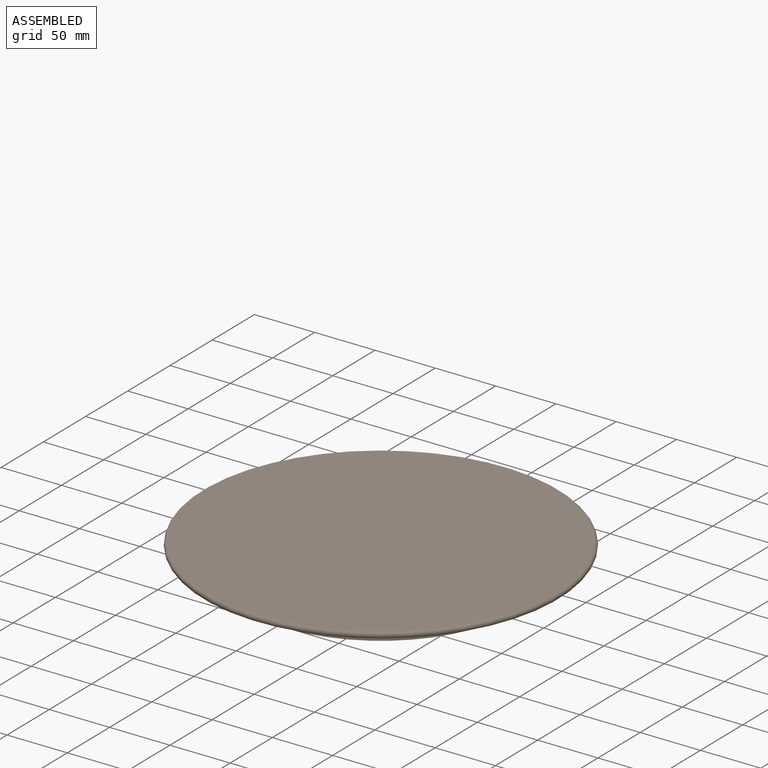
[diagram: assembled view]
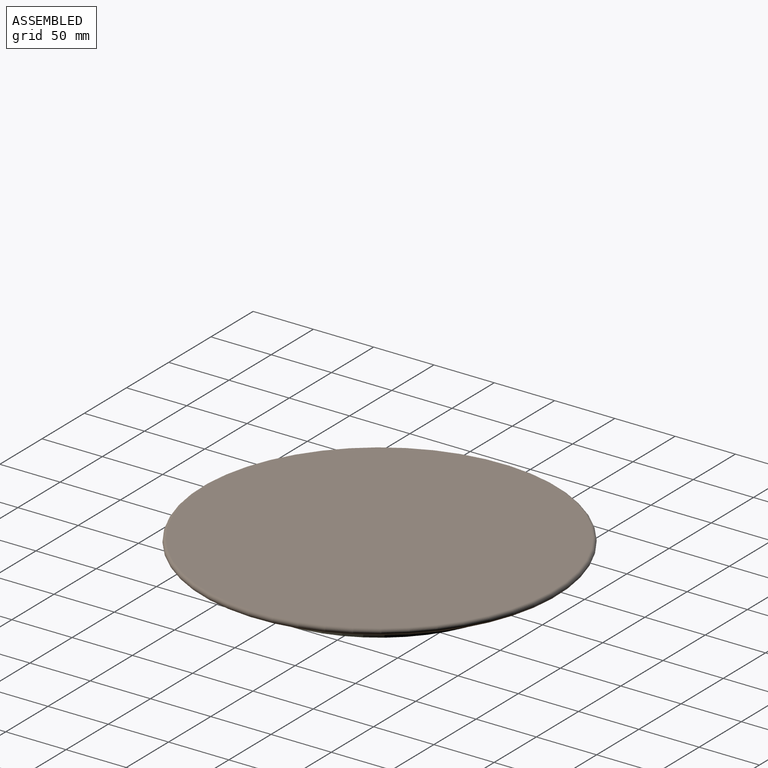
[diagram: assembled view, second angle]
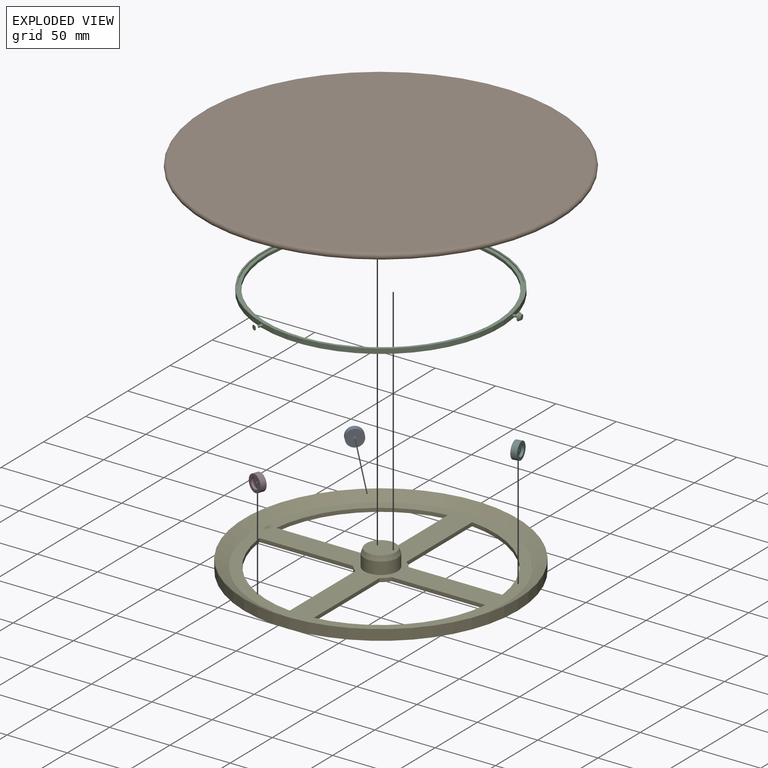
[diagram: exploded view]
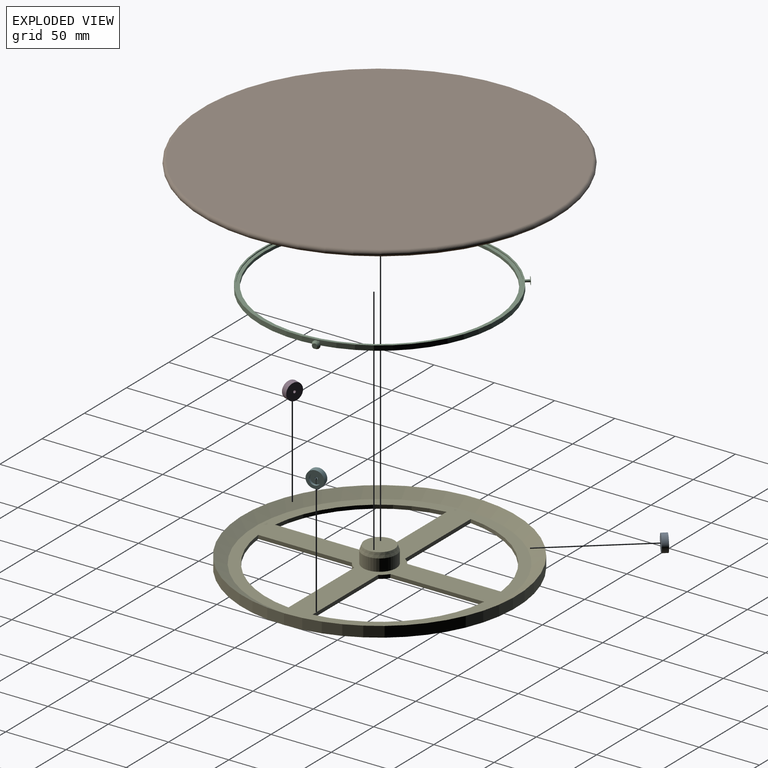
[diagram: exploded view, second angle]
ASSEMBLY  parts=6 mates=5
PART A: 6 faces, bbox 5x14x14 mm
  f0: cylinder r=1.1mm len=3mm, axis (-1,0,0), area 20.7mm2, adj f1,f5
  f1: plane 9x9mm, normal (1,0,0), area 59.8mm2, adj f0,f2
  f2: cylinder r=4.5mm len=9mm, axis (-1,0,0), area 56.5mm2, adj f1,f3
  f3: plane 14x14mm, normal (1,0,0), area 90.3mm2, adj f2,f4
  f4: cylinder r=7mm len=14mm, axis (-1,0,0), area 219.9mm2, adj f3,f5
  f5: plane 14x14mm, normal (-1,0,0), area 150.1mm2, adj f0,f4
PART B: 18 faces, bbox 319.3x319.3x9 mm
  f0: cone r=19mm half-angle=60.3deg, axis (0,0,1), area 195mm2, adj f2,f9,f12,f17
  f1: cone r=12.5mm half-angle=20.6deg, axis (0,0,-1), area 71.7mm2, adj f2,f9,f12,f17
  f2: plane 15.1x11.38mm, normal (0,0,-1), area 76.6mm2, adj f0,f1,f12,f17
  f3: cone r=19mm half-angle=60.3deg, axis (0,0,1), area 195mm2, adj f5,f9,f15,f16
  f4: cone r=12.5mm half-angle=20.6deg, axis (0,0,-1), area 71.7mm2, adj f5,f9,f15,f16
  f5: plane 16.75x6.55mm, normal (0,0,-1), area 76.6mm2, adj f3,f4,f15,f16
  f6: cone r=19mm half-angle=60.3deg, axis (0,0,1), area 195mm2, adj f9,f11,f13,f14
  f7: torus R=145mm, axis (0,0,-1), area 7234mm2, adj f8,f9
  f8: plane 290x290mm, normal (0,0,1), area 66052mm2, adj f7
  f9: plane 290x290mm, normal (0,0,-1), area 65012.1mm2, adj f0,f1,f3,f4,f6,f7,f10,f12
  f10: cone r=12.5mm half-angle=20.6deg, axis (0,0,-1), area 71.7mm2, adj f9,f11,f13,f14
  f11: plane 15.1x11.38mm, normal (0,0,-1), area 76.6mm2, adj f6,f10,f13,f14
  f12: plane 11.64x8.44mm, normal (-0.42,0.57,-0.71), area 53.4mm2, adj f0,f1,f2,f9
  f13: plane 11.64x8.44mm, normal (-0.42,-0.57,-0.71), area 53.4mm2, adj f6,f9,f10,f11
  f14: plane 13.96x4.87mm, normal (0.7,0.08,-0.71), area 53.4mm2, adj f6,f9,f10,f11
  f15: plane 12.93x8.22mm, normal (-0.28,0.65,-0.71), area 53.4mm2, adj f3,f4,f5,f9
  f16: plane 12.93x8.22mm, normal (-0.28,-0.65,-0.71), area 53.4mm2, adj f3,f4,f5,f9
  f17: plane 13.96x4.87mm, normal (0.7,-0.08,-0.71), area 53.4mm2, adj f0,f1,f2,f9
PART C: 20 faces, bbox 204.5x198x6.5 mm
  f0: plane 195.4x195.4mm, normal (0,0,-1), area 1634.5mm2, adj f1,f7
  f1: cylinder r=97.7mm len=195.4mm, axis (0,0,1), area 521.8mm2, adj f0,f2
  f2: plane 198x198mm, normal (0,0,-1), area 803.3mm2, adj f1,f3
  f3: cylinder r=99mm len=198mm, axis (0,0,1), area 2478.7mm2, adj f2,f4,f11,f15,f19
  f4: plane 198x198mm, normal (0,0,1), area 803.3mm2, adj f3,f5
  f5: cylinder r=97.7mm len=195.4mm, axis (0,0,1), area 521.8mm2, adj f4,f6
  f6: plane 195.4x195.4mm, normal (0,0,1), area 1634.5mm2, adj f5,f7
  f7: cylinder r=95mm len=190mm, axis (0,0,1), area 1372.9mm2, adj f0,f6
  f8: plane 4x4mm, normal (1,0,0), area 12.6mm2, adj f9
  f9: cone r=3.25mm half-angle=26.6deg, axis (-1,0,0), area 46.1mm2, adj f8,f10
  f10: plane 6.5x6.5mm, normal (-1,0,0), area 30mm2, adj f9,f11
  f11: cylinder r=1mm len=4mm, axis (-1,0,0), area 25.1mm2, adj f3,f10
  f12: plane 4x3.46mm, normal (-0.5,-0.87,0), area 12.6mm2, adj f13
  f13: cone r=3.25mm half-angle=26.6deg, axis (0.5,0.87,0), area 46.1mm2, adj f12,f14
  f14: plane 6.5x5.63mm, normal (0.5,0.87,0), area 30mm2, adj f13,f15
  f15: cylinder r=1mm len=4.46mm, axis (0.5,0.87,0), area 25.1mm2, adj f3,f14
  f16: plane 4x3.46mm, normal (-0.5,0.87,0), area 12.6mm2, adj f17
  f17: cone r=3.25mm half-angle=26.6deg, axis (0.5,-0.87,0), area 46.1mm2, adj f16,f18
  f18: plane 6.5x5.63mm, normal (0.5,-0.87,0), area 30mm2, adj f17,f19
  f19: cylinder r=1mm len=4.46mm, axis (0.5,-0.87,0), area 25.1mm2, adj f3,f18
PART D: same geometry as A
PART E: 23 faces, bbox 226.5x226.5x17 mm
  f0: plane 206.5x206.5mm, normal (0,0,1), area 12192.4mm2, adj f3,f4,f7,f8,f9,f10,f11,f12
  f1: plane 226.5x226.5mm, normal (0,0,-1), area 19592.2mm2, adj f2,f7,f8,f9,f10,f11,f12,f13
  f2: cylinder r=113.25mm len=226.5mm, axis (0,0,1), area 6243mm2, adj f1,f3
  f3: cone r=103.25mm half-angle=60deg, axis (0,0,1), area 7853.8mm2, adj f0,f2
  f4: cylinder r=13.8mm len=27.6mm, axis (0,0,1), area 867.1mm2, adj f0,f5
  f5: cone r=12.3mm half-angle=20.6deg, axis (0,0,-1), area 350.3mm2, adj f4,f6
  f6: plane 24.6x24.6mm, normal (0,0,1), area 475.3mm2, adj f5
  f7: plane 77.8x3mm, normal (0,1,0), area 233.4mm2, adj f0,f1,f8,f9
  f8: cylinder r=94.25mm len=83.72mm, axis (0,0,1), area 384mm2, adj f0,f1,f7,f10
  f9: cylinder r=18.8mm len=5.92mm, axis (0,0,1), area 25.3mm2, adj f0,f1,f7,f10
  f10: plane 77.8x3mm, normal (1,0,0), area 233.4mm2, adj f0,f1,f8,f9
  f11: plane 77.8x3mm, normal (-1,0,0), area 233.4mm2, adj f0,f1,f12,f13
  f12: cylinder r=94.25mm len=83.72mm, axis (0,0,1), area 384mm2, adj f0,f1,f11,f14
  f13: cylinder r=18.8mm len=5.92mm, axis (0,0,1), area 25.3mm2, adj f0,f1,f11,f14
  f14: plane 77.8x3mm, normal (0,1,0), area 233.4mm2, adj f0,f1,f12,f13
  f15: plane 77.8x3mm, normal (0,-1,0), area 233.4mm2, adj f0,f1,f16,f17
  f16: cylinder r=94.25mm len=83.72mm, axis (0,0,1), area 384mm2, adj f0,f1,f15,f18
  f17: cylinder r=18.8mm len=5.92mm, axis (0,0,1), area 25.3mm2, adj f0,f1,f15,f18
  f18: plane 77.8x3mm, normal (-1,0,0), area 233.4mm2, adj f0,f1,f16,f17
  f19: plane 77.8x3mm, normal (1,0,0), area 233.4mm2, adj f0,f1,f20,f21
  f20: cylinder r=94.25mm len=83.72mm, axis (0,0,1), area 384mm2, adj f0,f1,f19,f22
  f21: cylinder r=18.8mm len=5.92mm, axis (0,0,1), area 25.3mm2, adj f0,f1,f19,f22
  f22: plane 77.8x3mm, normal (0,-1,0), area 233.4mm2, adj f0,f1,f20,f21
PART F: same geometry as A
PLACE A rot(axis=(0.42,0.9,0.13),172.9deg) t=(6.12,6.17,-18.47)mm
PLACE B rot(axis=(0,0,1),20.5deg) t=(0,0,17)mm
PLACE C rot(axis=(0,0,1),10.3deg) t=(0,0,39.75)mm
PLACE D rot(axis=(-0.58,0.82,-0.01),179.5deg) t=(0.2,-0.87,-19.75)mm
PLACE E t=(0,0,91.84)mm
PLACE F rot(axis=(0.98,0.09,0.2),47.6deg) t=(4.58,-21.1,30.48)mm
MATE cylindrical B.f0 <-> E.f3  axis (0,0,-1) through (0,0,17)mm
MATE cylindrical C.f1 <-> E.f3  axis (0,0,1) through (0,0,10)mm
MATE revolute F.f0 <-> C.f9  axis (0.98,0.18,0) through (101.35,18.34,10)mm
MATE revolute D.f0 <-> C.f13  axis (-0.34,-0.94,0) through (-34.79,-96.95,10)mm
MATE revolute A.f0 <-> C.f17  axis (-0.65,0.76,0) through (-66.56,78.6,10)mm
